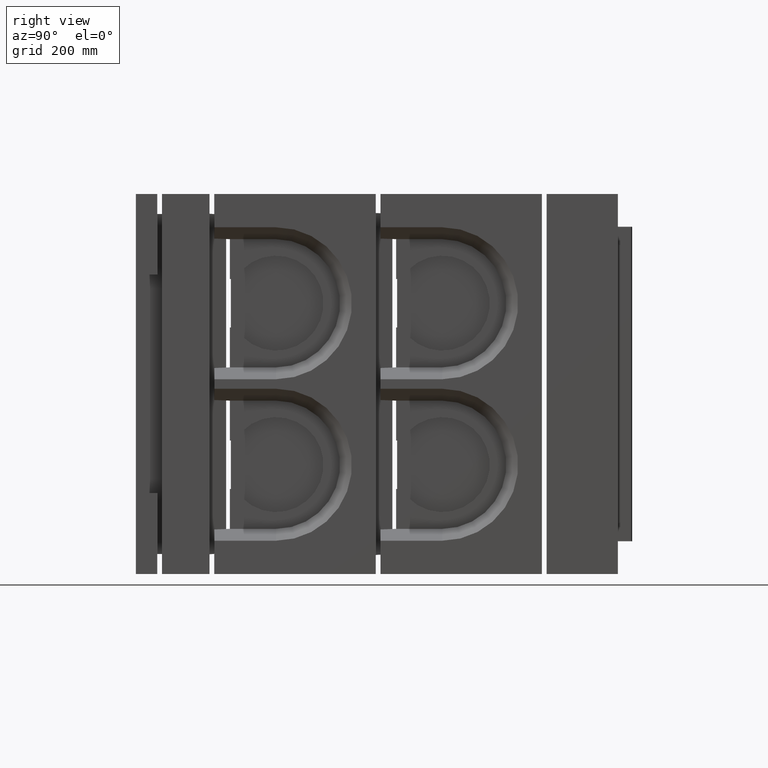
[diagram: clean part render]
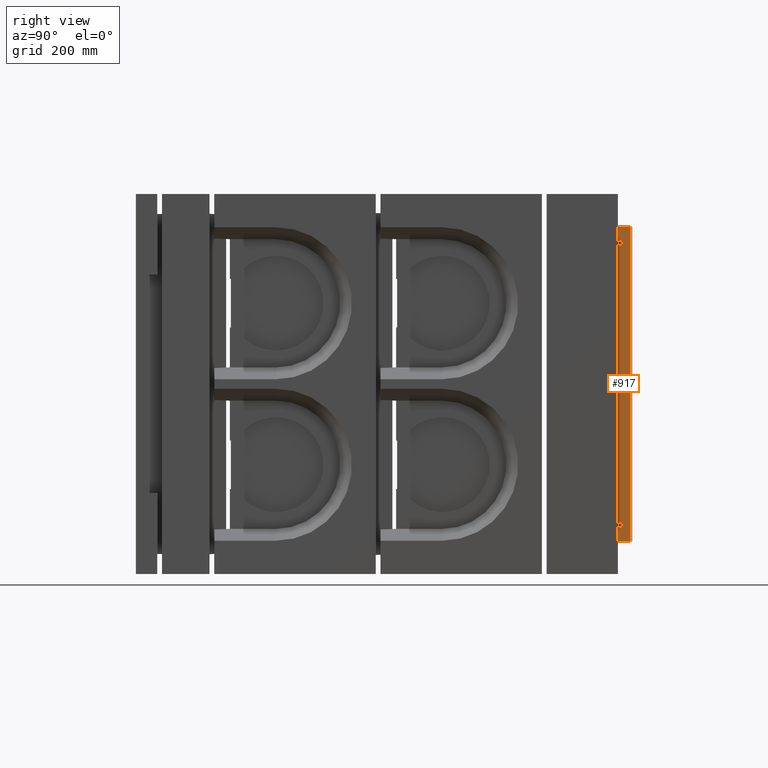
[diagram: same view with one face highlighted and labeled with its STEP entity id]
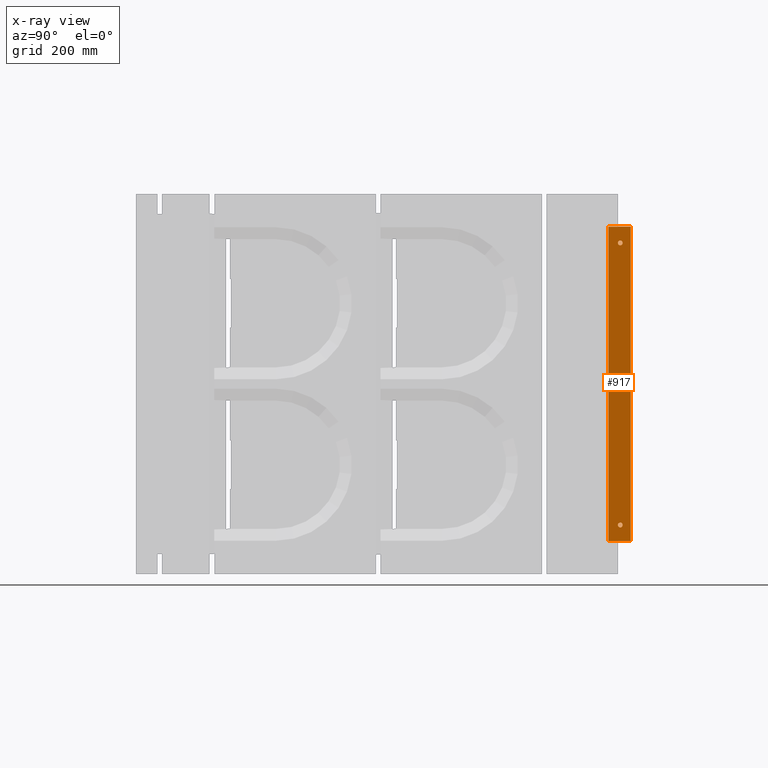
[diagram: x-ray of the same camera — body ghosted, the highlighted face saturated]
A machine part, right view. The second image highlights one B-rep face of the part: STEP entity #917.
The next image is the same camera in x-ray: the body ghosted, the highlighted face saturated — about 0% of this face is hidden behind the body in this view.
In plain terms, the highlighted planar face has unit normal (-1, 0, 0).
Its self-contained STEP definition (entity closure, byte-faithful):
#149 = ORIENTED_EDGE ( 'NONE', *, *, #26219, .T. ) ;
#917 = ADVANCED_FACE ( 'NONE', ( #1683, #13433, #18178 ), #6312, .F. ) ;
#1683 = FACE_BOUND ( 'NONE', #7578, .T. ) ;
#2413 = ORIENTED_EDGE ( 'NONE', *, *, #9206, .F. ) ;
#2445 = CARTESIAN_POINT ( 'NONE',  ( 331.0000000000001705, 1042.000000000000227, -330.9999999999998295 ) ) ;
#4313 = VECTOR ( 'NONE', #20766, 1000.000000000000000 ) ;
#5193 = CARTESIAN_POINT ( 'NONE',  ( 331.0000000000001705, 1042.000000000000227, -330.9999999999998295 ) ) ;
#5242 = CARTESIAN_POINT ( 'NONE',  ( 331.0000000000001705, 1020.000000000000000, 297.0000000000002274 ) ) ;
#5511 = VERTEX_POINT ( 'NONE', #24647 ) ;
#5538 = DIRECTION ( 'NONE',  ( 1.734723475976802164E-17, -4.996003610813210348E-16, 1.000000000000000000 ) ) ;
#5931 = VECTOR ( 'NONE', #15274, 1000.000000000000000 ) ;
#6261 = LINE ( 'NONE', #14836, #4313 ) ;
#6312 = PLANE ( 'NONE',  #15735 ) ;
#6791 = AXIS2_PLACEMENT_3D ( 'NONE', #5242, #7283, #21955 ) ;
#7048 = VERTEX_POINT ( 'NONE', #12945 ) ;
#7283 = DIRECTION ( 'NONE',  ( -1.000000000000000000, 5.548162402315607483E-16, 1.734723475976846846E-17 ) ) ;
#7365 = CARTESIAN_POINT ( 'NONE',  ( 331.0000000000001705, 1041.999999999999773, 331.0000000000001705 ) ) ;
#7578 = EDGE_LOOP ( 'NONE', ( #149 ) ) ;
#8087 = EDGE_LOOP ( 'NONE', ( #8463, #2413, #8619, #8137 ) ) ;
#8137 = ORIENTED_EDGE ( 'NONE', *, *, #16910, .T. ) ;
#8205 = VECTOR ( 'NONE', #16856, 1000.000000000000000 ) ;
#8463 = ORIENTED_EDGE ( 'NONE', *, *, #8698, .T. ) ;
#8619 = ORIENTED_EDGE ( 'NONE', *, *, #16858, .F. ) ;
#8698 = EDGE_CURVE ( 'NONE', #21533, #13597, #19961, .T. ) ;
#9206 = EDGE_CURVE ( 'NONE', #19662, #13597, #25566, .T. ) ;
#9299 = EDGE_CURVE ( 'NONE', #5511, #5511, #22126, .T. ) ;
#10207 = DIRECTION ( 'NONE',  ( 1.000000000000000000, -5.548162402315607483E-16, -1.734723475976846846E-17 ) ) ;
#10384 = EDGE_LOOP ( 'NONE', ( #25520 ) ) ;
#11844 = VERTEX_POINT ( 'NONE', #23697 ) ;
#12945 = CARTESIAN_POINT ( 'NONE',  ( 331.0000000000001705, 1015.000000000000114, 297.0000000000002274 ) ) ;
#13085 = CARTESIAN_POINT ( 'NONE',  ( 331.0000000000001705, 1041.999999999999773, 331.0000000000001705 ) ) ;
#13433 = FACE_BOUND ( 'NONE', #10384, .T. ) ;
#13597 = VERTEX_POINT ( 'NONE', #21431 ) ;
#14255 = DIRECTION ( 'NONE',  ( 0.0000000000000000000, -1.000000000000000000, 0.0000000000000000000 ) ) ;
#14836 = CARTESIAN_POINT ( 'NONE',  ( 331.0000000000001705, 1042.000000000000227, -330.9999999999998295 ) ) ;
#15274 = DIRECTION ( 'NONE',  ( 1.734723475976802164E-17, -4.996003610813210348E-16, 1.000000000000000000 ) ) ;
#15735 = AXIS2_PLACEMENT_3D ( 'NONE', #2445, #16300, #16551 ) ;
#16300 = DIRECTION ( 'NONE',  ( -1.000000000000000000, 5.548162402315607483E-16, 1.734723475976846537E-17 ) ) ;
#16551 = DIRECTION ( 'NONE',  ( 5.548162402315607483E-16, 1.000000000000000000, 4.996003610813211334E-16 ) ) ;
#16856 = DIRECTION ( 'NONE',  ( -5.548162402315608469E-16, -1.000000000000000000, -4.996003610813211334E-16 ) ) ;
#16858 = EDGE_CURVE ( 'NONE', #11844, #19662, #6261, .T. ) ;
#16910 = EDGE_CURVE ( 'NONE', #11844, #21533, #25914, .T. ) ;
#17938 = VECTOR ( 'NONE', #5538, 1000.000000000000000 ) ;
#18178 = FACE_OUTER_BOUND ( 'NONE', #8087, .T. ) ;
#19662 = VERTEX_POINT ( 'NONE', #22419 ) ;
#19961 = LINE ( 'NONE', #13085, #8205 ) ;
#20073 = CARTESIAN_POINT ( 'NONE',  ( 331.0000000000001137, 995.0000000000002274, -330.9999999999998863 ) ) ;
#20766 = DIRECTION ( 'NONE',  ( -5.548162402315608469E-16, -1.000000000000000000, -4.996003610813211334E-16 ) ) ;
#21431 = CARTESIAN_POINT ( 'NONE',  ( 331.0000000000001137, 994.9999999999998863, 331.0000000000001137 ) ) ;
#21533 = VERTEX_POINT ( 'NONE', #7365 ) ;
#21955 = DIRECTION ( 'NONE',  ( 0.0000000000000000000, -1.000000000000000000, 0.0000000000000000000 ) ) ;
#22126 = CIRCLE ( 'NONE', #25200, 4.999999999999893419 ) ;
#22419 = CARTESIAN_POINT ( 'NONE',  ( 331.0000000000001137, 995.0000000000002274, -330.9999999999998863 ) ) ;
#23697 = CARTESIAN_POINT ( 'NONE',  ( 331.0000000000001705, 1042.000000000000227, -330.9999999999998295 ) ) ;
#24493 = CARTESIAN_POINT ( 'NONE',  ( 331.0000000000001137, 1020.000000000000227, -296.9999999999998863 ) ) ;
#24647 = CARTESIAN_POINT ( 'NONE',  ( 331.0000000000001137, 1015.000000000000341, -296.9999999999998863 ) ) ;
#24885 = CIRCLE ( 'NONE', #6791, 4.999999999999893419 ) ;
#25200 = AXIS2_PLACEMENT_3D ( 'NONE', #24493, #10207, #14255 ) ;
#25520 = ORIENTED_EDGE ( 'NONE', *, *, #9299, .F. ) ;
#25566 = LINE ( 'NONE', #20073, #17938 ) ;
#25914 = LINE ( 'NONE', #5193, #5931 ) ;
#26219 = EDGE_CURVE ( 'NONE', #7048, #7048, #24885, .T. ) ;